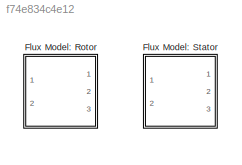
MODEL slx_f74e834c4e12
KIND library
CONFIG AbsTol = auto
CONFIG FixedStep = auto
CONFIG MaxStep = auto
CONFIG MinStep = auto
CONFIG RelTol = 1e-3
CONFIG SampleTimeConstraint = Unconstrained
CONFIG Solver = VariableStepAuto
CONFIG SolverMode = Auto
CONFIG SolverName = VariableStepAuto
CONFIG StartTime = 0.0
CONFIG StopTime = 10.0
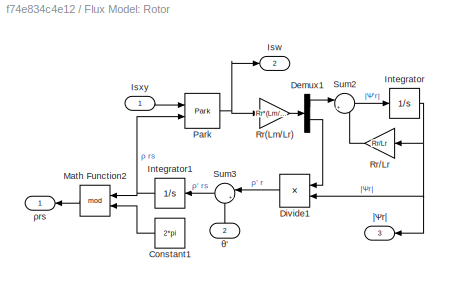
BLOCK [SubSystem] Flux Model: Rotor
  Ports = [2, 3]
  RequestExecContextInheritance = off
  Variant = off
BLOCK [Constant] Flux Model: Rotor/Constant1
  Value = 2*pi
BLOCK [Demux] Flux Model: Rotor/Demux1
  DisplayOption = bar
  Outputs = 2
  Ports = [1, 2]
BLOCK [Product] Flux Model: Rotor/Divide1
  InputSameDT = off
  Inputs = */
  OutDataTypeStr = Inherit: Inherit via internal rule
  Ports = [2, 1]
  RndMeth = Floor
  SaturateOnIntegerOverflow = off
BLOCK [Integrator] Flux Model: Rotor/Integrator
  InitialCondition = dflx0
  Ports = [1, 1]
BLOCK [Integrator] Flux Model: Rotor/Integrator1
  Ports = [1, 1]
BLOCK [Outport] Flux Model: Rotor/Isw
  IconDisplay = Port number
  Port = 2
BLOCK [Inport] Flux Model: Rotor/Isxy
  IconDisplay = Port number
BLOCK [Math] Flux Model: Rotor/Math Function2
  Operator = mod
  Ports = [2, 1]
BLOCK [Reference] Flux Model: Rotor/Park  REF=transformations_lib/Park  (lib defined in mdl_2ce55236bfae, slx_92415576b6a2)
  Ports = [2, 1]
  SourceBlock = transformations_lib/Park
BLOCK [Gain] Flux Model: Rotor/Rr(Lm//Lr)
  Gain = Rr*(Lm/Lr)
  OutDataTypeStr = Inherit: Inherit via internal rule
  ParamDataTypeStr = Inherit: Inherit via internal rule
  SaturateOnIntegerOverflow = off
BLOCK [Gain] Flux Model: Rotor/Rr//Lr
  Gain = Rr/Lr
  OutDataTypeStr = Inherit: Inherit via internal rule
  ParamDataTypeStr = Inherit: Inherit via internal rule
  SaturateOnIntegerOverflow = off
BLOCK [Sum] Flux Model: Rotor/Sum2
  IconShape = round
  InputSameDT = off
  Inputs = |+-
  OutDataTypeStr = Inherit: Inherit via internal rule
  Ports = [2, 1]
  SaturateOnIntegerOverflow = off
BLOCK [Sum] Flux Model: Rotor/Sum3
  IconShape = round
  InputSameDT = off
  Inputs = |++
  OutDataTypeStr = Inherit: Inherit via internal rule
  Ports = [2, 1]
  SaturateOnIntegerOverflow = off
BLOCK [Outport] Flux Model: Rotor/|Ѱr|
  IconDisplay = Port number
  Port = 3
BLOCK [Inport] Flux Model: Rotor/θ' 
  IconDisplay = Port number
  Port = 2
BLOCK [Outport] Flux Model: Rotor/ρrs
  IconDisplay = Port number
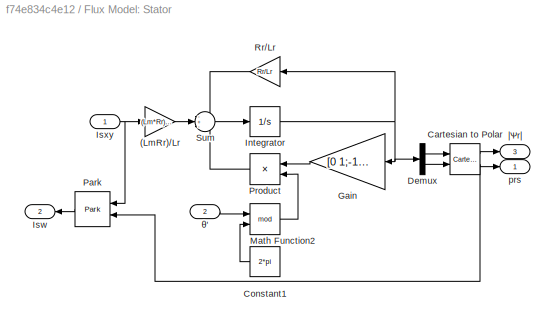
BLOCK [SubSystem] Flux Model: Stator
  Ports = [2, 3]
  RequestExecContextInheritance = off
  Variant = off
BLOCK [Gain] Flux Model: Stator/(LmRr)//Lr
  Gain = (Lm*Rr)/Lr
  OutDataTypeStr = Inherit: Inherit via internal rule
  ParamDataTypeStr = Inherit: Inherit via internal rule
  SaturateOnIntegerOverflow = off
BLOCK [Reference] Flux Model: Stator/Cartesian to Polar  REF=simulink_extras/Transformations/Cartesian to
Polar
  Ports = [2, 2]
  SourceBlock = simulink_extras/Transformations/Cartesian to\nPolar
  SourceType = Cart2Polar
BLOCK [Constant] Flux Model: Stator/Constant1
  Value = 2*pi
BLOCK [Demux] Flux Model: Stator/Demux
  DisplayOption = bar
  Outputs = 2
  Ports = [1, 2]
BLOCK [Gain] Flux Model: Stator/Gain
  Gain = [0 1;-1 0]
  Multiplication = Matrix(K*u)
  OutDataTypeStr = Inherit: Inherit via internal rule
  ParamDataTypeStr = Inherit: Inherit via internal rule
  SaturateOnIntegerOverflow = off
BLOCK [Integrator] Flux Model: Stator/Integrator
  InitialCondition = [flux0;flux0]
  Ports = [1, 1]
BLOCK [Outport] Flux Model: Stator/Isw
  IconDisplay = Port number
  Port = 2
BLOCK [Inport] Flux Model: Stator/Isxy
  IconDisplay = Port number
BLOCK [Math] Flux Model: Stator/Math Function2
  Operator = mod
  Ports = [2, 1]
BLOCK [Reference] Flux Model: Stator/Park  REF=transformations_lib/Park  (lib defined in mdl_2ce55236bfae, slx_92415576b6a2)
  Ports = [2, 1]
  SourceBlock = transformations_lib/Park
BLOCK [Product] Flux Model: Stator/Product
  InputSameDT = off
  OutDataTypeStr = Inherit: Inherit via internal rule
  Ports = [2, 1]
  RndMeth = Floor
  SaturateOnIntegerOverflow = off
BLOCK [Gain] Flux Model: Stator/Rr//Lr
  Gain = Rr/Lr
  OutDataTypeStr = Inherit: Inherit via internal rule
  ParamDataTypeStr = Inherit: Inherit via internal rule
  SaturateOnIntegerOverflow = off
BLOCK [Sum] Flux Model: Stator/Sum
  IconShape = round
  InputSameDT = off
  Inputs = -+-
  OutDataTypeStr = Inherit: Inherit via internal rule
  Ports = [3, 1]
  SaturateOnIntegerOverflow = off
BLOCK [Outport] Flux Model: Stator/prs
  IconDisplay = Port number
BLOCK [Outport] Flux Model: Stator/|Ѱr|
  IconDisplay = Port number
  Port = 3
BLOCK [Inport] Flux Model: Stator/θ'
  IconDisplay = Port number
  Port = 2
LINE Flux Model: Rotor/Constant1:1 -> Flux Model: Rotor/Math Function2:2
LINE Flux Model: Rotor/Demux1:1 -> Flux Model: Rotor/Sum2:1
LINE Flux Model: Rotor/Demux1:2 -> Flux Model: Rotor/Divide1:1
LINE Flux Model: Rotor/Divide1:1 -> Flux Model: Rotor/Sum3:1
NET Flux Model: Rotor/Integrator1:1 -> Flux Model: Rotor/Math Function2:1, Flux Model: Rotor/Park:2
NET Flux Model: Rotor/Integrator:1 -> Flux Model: Rotor/Divide1:2, Flux Model: Rotor/Rr//Lr:1, Flux Model: Rotor/|Ѱr|:1
LINE Flux Model: Rotor/Isxy:1 -> Flux Model: Rotor/Park:1
LINE Flux Model: Rotor/Math Function2:1 -> Flux Model: Rotor/ρrs:1
NET Flux Model: Rotor/Park:1 -> Flux Model: Rotor/Isw:1, Flux Model: Rotor/Rr(Lm//Lr):1
LINE Flux Model: Rotor/Rr(Lm//Lr):1 -> Flux Model: Rotor/Demux1:1
LINE Flux Model: Rotor/Rr//Lr:1 -> Flux Model: Rotor/Sum2:2
LINE Flux Model: Rotor/Sum2:1 -> Flux Model: Rotor/Integrator:1
LINE Flux Model: Rotor/Sum3:1 -> Flux Model: Rotor/Integrator1:1
LINE Flux Model: Rotor/θ' :1 -> Flux Model: Rotor/Sum3:2
LINE Flux Model: Stator/(LmRr)//Lr:1 -> Flux Model: Stator/Sum:2
LINE Flux Model: Stator/Cartesian to Polar:1 -> Flux Model: Stator/|Ѱr|:1
NET Flux Model: Stator/Cartesian to Polar:2 -> Flux Model: Stator/Park:2, Flux Model: Stator/prs:1
LINE Flux Model: Stator/Constant1:1 -> Flux Model: Stator/Math Function2:2
LINE Flux Model: Stator/Demux:1 -> Flux Model: Stator/Cartesian to Polar:1
LINE Flux Model: Stator/Demux:2 -> Flux Model: Stator/Cartesian to Polar:2
LINE Flux Model: Stator/Gain:1 -> Flux Model: Stator/Product:1
NET Flux Model: Stator/Integrator:1 -> Flux Model: Stator/Demux:1, Flux Model: Stator/Gain:1, Flux Model: Stator/Rr//Lr:1
NET Flux Model: Stator/Isxy:1 -> Flux Model: Stator/(LmRr)//Lr:1, Flux Model: Stator/Park:1
LINE Flux Model: Stator/Math Function2:1 -> Flux Model: Stator/Product:2
LINE Flux Model: Stator/Park:1 -> Flux Model: Stator/Isw:1
LINE Flux Model: Stator/Product:1 -> Flux Model: Stator/Sum:3
LINE Flux Model: Stator/Rr//Lr:1 -> Flux Model: Stator/Sum:1
LINE Flux Model: Stator/Sum:1 -> Flux Model: Stator/Integrator:1
LINE Flux Model: Stator/θ':1 -> Flux Model: Stator/Math Function2:1
note: NET lines group one-source signal fan-out (src -> all destinations, sorted); 1:1 wires keep LINE
